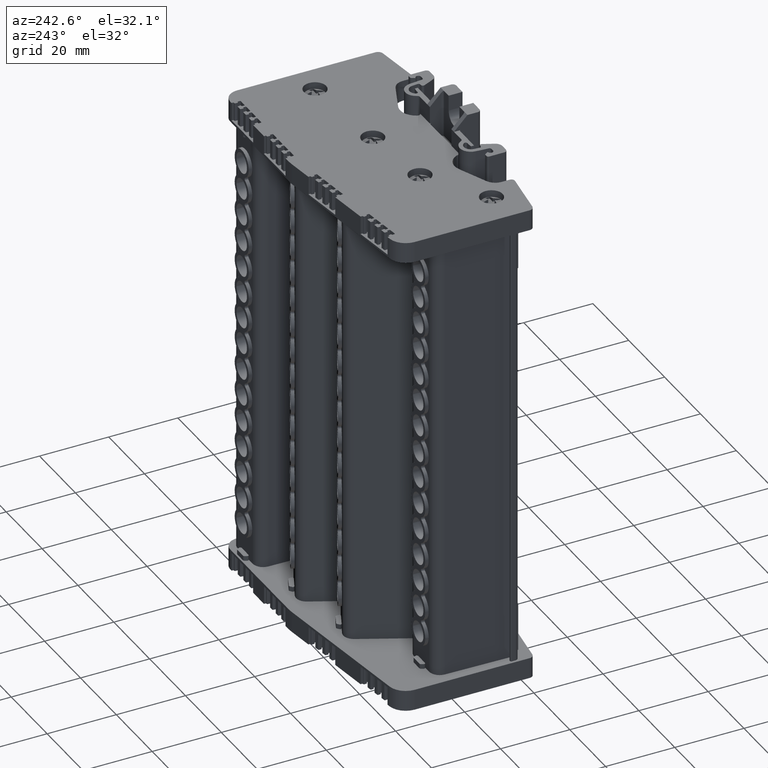
[diagram: clean part render]
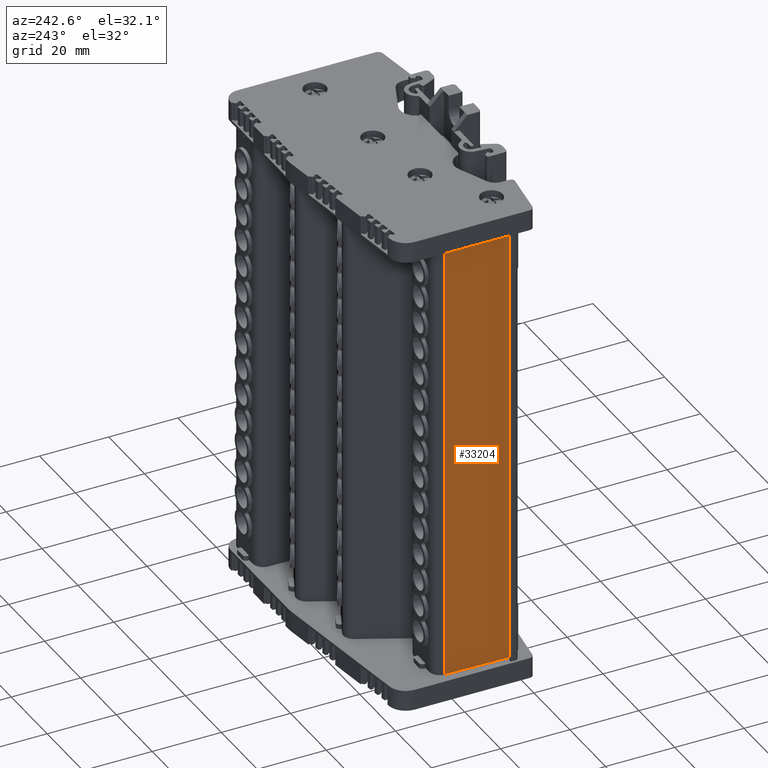
[diagram: same view with one face highlighted and labeled with its STEP entity id]
A machine part, auxiliary view. The second image highlights one B-rep face of the part: STEP entity #33204.
In plain terms, the highlighted planar face has unit normal (0.9998, -0.0175, -0).
Its self-contained STEP definition (entity closure, byte-faithful):
#8206 = VECTOR ( 'NONE', #10202, 1000.000000000000000 ) ;
#10135 = CARTESIAN_POINT ( 'NONE',  ( 352.8994366712806800, -109.6640709730260300, -10.89068745370570700 ) ) ;
#10155 = LINE ( 'NONE', #10135, #8206 ) ;
#10202 = DIRECTION ( 'NONE',  ( -7.260773709496580500E-015, 1.267372765541251900E-016, -1.000000000000000000 ) ) ;
#18889 = FACE_OUTER_BOUND ( 'NONE', #99587, .T. ) ;
#18923 = DIRECTION ( 'NONE',  ( 0.9998476951563293200, -0.01745240644083070500, -7.261879728953454200E-015 ) ) ;
#18932 = DIRECTION ( 'NONE',  ( 0.01745240644083070500, 0.9998476951563293200, 0.0000000000000000000 ) ) ;
#18939 = CARTESIAN_POINT ( 'NONE',  ( 353.2999876288204700, -86.71652198907494800, -10.89068745370570700 ) ) ;
#18948 = PLANE ( 'NONE',  #39743 ) ;
#20263 = VERTEX_POINT ( 'NONE', #72977 ) ;
#21812 = CARTESIAN_POINT ( 'NONE',  ( 353.2302173438301900, -90.71365893836730300, 96.29460800001189100 ) ) ;
#21819 = DIRECTION ( 'NONE',  ( -0.01745240644084044400, -0.9998476951563291000, 0.0000000000000000000 ) ) ;
#22520 = LINE ( 'NONE', #21812, #25014 ) ;
#24273 = VECTOR ( 'NONE', #25912, 1000.000000000000000 ) ;
#24289 = VECTOR ( 'NONE', #25902, 1000.000000000000200 ) ;
#25014 = VECTOR ( 'NONE', #21819, 1000.000000000000100 ) ;
#25839 = CARTESIAN_POINT ( 'NONE',  ( 353.2302173438295700, -90.71365893836683400, 2.304312546180583800 ) ) ;
#25871 = LINE ( 'NONE', #25839, #24273 ) ;
#25880 = LINE ( 'NONE', #25887, #24289 ) ;
#25887 = CARTESIAN_POINT ( 'NONE',  ( 352.8994366712805100, -109.6640709730250200, -33.40539199998789100 ) ) ;
#25902 = DIRECTION ( 'NONE',  ( 0.01745240644084042700, 0.9998476951563291000, 0.0000000000000000000 ) ) ;
#25912 = DIRECTION ( 'NONE',  ( 6.982962677686110500E-015, -1.604252062634190000E-014, 1.000000000000000000 ) ) ;
#33204 = ADVANCED_FACE ( 'NONE', ( #18889 ), #18948, .F. ) ;
#33611 = EDGE_CURVE ( 'NONE', #62609, #61834, #22520, .T. ) ;
#33840 = EDGE_CURVE ( 'NONE', #20263, #62609, #25871, .T. ) ;
#33844 = EDGE_CURVE ( 'NONE', #61848, #20263, #25880, .T. ) ;
#34842 = EDGE_CURVE ( 'NONE', #61834, #61848, #10155, .T. ) ;
#39743 = AXIS2_PLACEMENT_3D ( 'NONE', #18939, #18923, #18932 ) ;
#61834 = VERTEX_POINT ( 'NONE', #112866 ) ;
#61848 = VERTEX_POINT ( 'NONE', #113024 ) ;
#62609 = VERTEX_POINT ( 'NONE', #112056 ) ;
#72977 = CARTESIAN_POINT ( 'NONE',  ( 353.2302173438293900, -90.71365893836458800, -33.40539199998790600 ) ) ;
#99587 = EDGE_LOOP ( 'NONE', ( #114289, #114306, #114275, #114258 ) ) ;
#112056 = CARTESIAN_POINT ( 'NONE',  ( 353.2302173438301900, -90.71365893836666300, 96.29460800001189100 ) ) ;
#112866 = CARTESIAN_POINT ( 'NONE',  ( 352.8994366712814200, -109.6640709730260300, 96.29460800001189100 ) ) ;
#113024 = CARTESIAN_POINT ( 'NONE',  ( 352.8994366712805700, -109.6640709730249900, -33.40539199998789900 ) ) ;
#114258 = ORIENTED_EDGE ( 'NONE', *, *, #33844, .F. ) ;
#114275 = ORIENTED_EDGE ( 'NONE', *, *, #33840, .F. ) ;
#114289 = ORIENTED_EDGE ( 'NONE', *, *, #34842, .F. ) ;
#114306 = ORIENTED_EDGE ( 'NONE', *, *, #33611, .F. ) ;